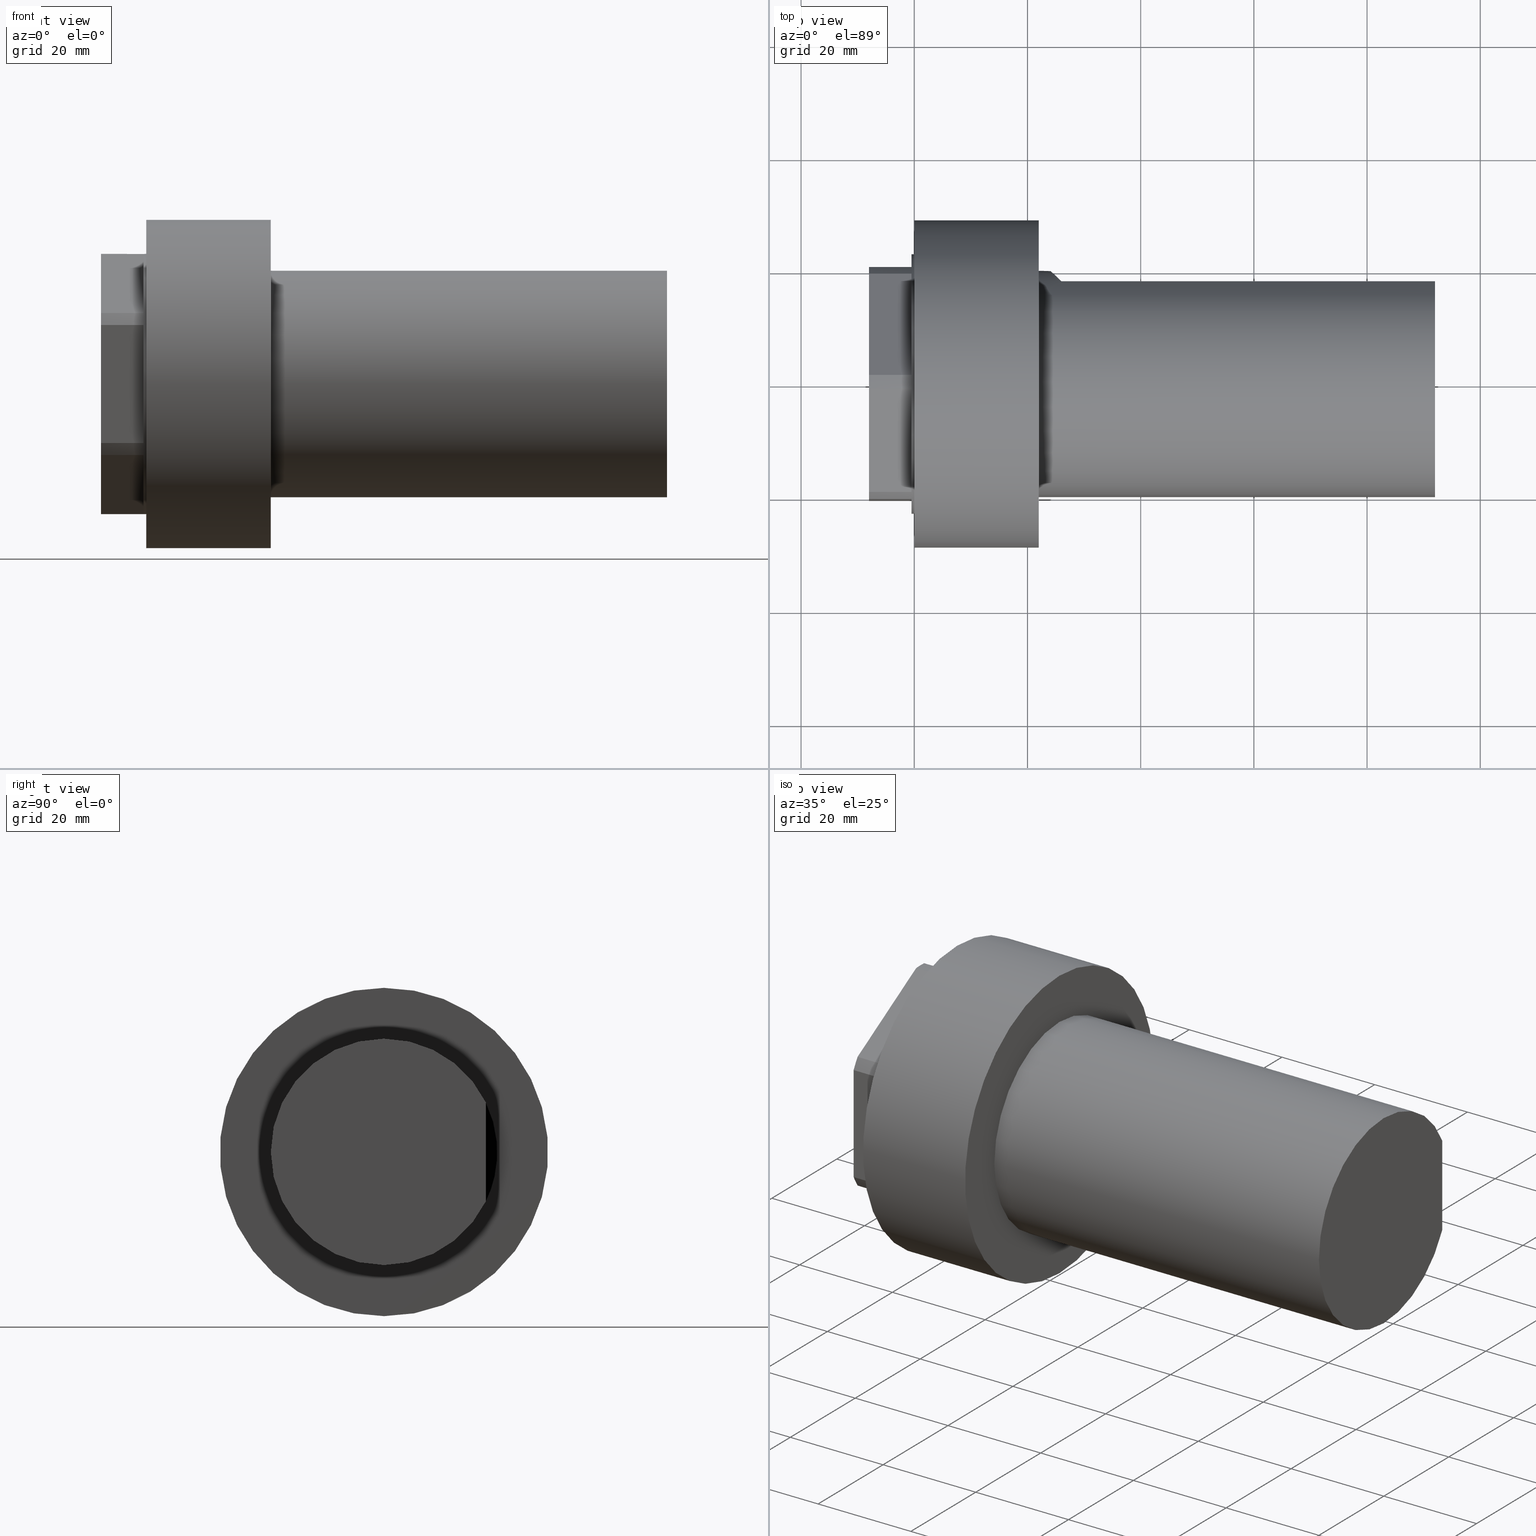
[diagram: canonical four-view strip — front | top / right | iso, engineering-drawing reading convention]
A machine part, canonical four-view strip (front | top / right | iso — engineering-drawing reading convention). The complete STEP part file that produces these views, byte-faithful:
ISO-10303-21;
HEADER;
FILE_DESCRIPTION( ( 'Unknown' ), '1' );
FILE_NAME( 'Z:/SE_WORK/Step-Stl/330032040.stp', 'Unknown', ( 'kau' ), ( 'WTO' ), 'PSStep 10.0', 'SE V20', '  ' );
FILE_SCHEMA( ( 'AUTOMOTIVE_DESIGN { 1 0 10303 214 1 1 1 1 }' ) );
ENDSEC;
DATA;
#1 = MECHANICAL_DESIGN_GEOMETRIC_PRESENTATION_REPRESENTATION( ' ', ( #10, #11, #12, #13, #14, #15, #16, #17, #18, #19, #20, #21, #22, #23, #24, #25, #26, #27, #28, #29, #30, #31, #32, #33, #34, #35, #36 ), #6 );
#2 = PRODUCT_DEFINITION_CONTEXT( '', #37, 'design' );
#3 = APPLICATION_PROTOCOL_DEFINITION( 'INTERNATIONAL STANDARD', 'automotive_design', 2001, #37 );
#4 = PRODUCT_CATEGORY_RELATIONSHIP( 'NONE', 'NONE', #38, #39 );
#5 = SHAPE_DEFINITION_REPRESENTATION( #40, #41 );
#6 =  ( GEOMETRIC_REPRESENTATION_CONTEXT( 3 )GLOBAL_UNCERTAINTY_ASSIGNED_CONTEXT( ( #44 ) )GLOBAL_UNIT_ASSIGNED_CONTEXT( ( #46, #47, #48 ) )REPRESENTATION_CONTEXT( 'NONE', 'WORKSPACE' ) );
#10 = STYLED_ITEM( '', ( #50 ), #51 );
#11 = STYLED_ITEM( '', ( #52 ), #53 );
#12 = STYLED_ITEM( '', ( #54 ), #55 );
#13 = STYLED_ITEM( '', ( #56 ), #57 );
#14 = STYLED_ITEM( '', ( #58 ), #59 );
#15 = STYLED_ITEM( '', ( #60 ), #61 );
#16 = STYLED_ITEM( '', ( #62 ), #63 );
#17 = STYLED_ITEM( '', ( #64 ), #65 );
#18 = STYLED_ITEM( '', ( #66 ), #67 );
#19 = STYLED_ITEM( '', ( #68 ), #69 );
#20 = STYLED_ITEM( '', ( #70 ), #71 );
#21 = STYLED_ITEM( '', ( #72 ), #73 );
#22 = STYLED_ITEM( '', ( #74 ), #75 );
#23 = STYLED_ITEM( '', ( #76 ), #77 );
#24 = STYLED_ITEM( '', ( #78 ), #79 );
#25 = STYLED_ITEM( '', ( #80 ), #81 );
#26 = STYLED_ITEM( '', ( #82 ), #83 );
#27 = STYLED_ITEM( '', ( #84 ), #85 );
#28 = STYLED_ITEM( '', ( #86 ), #87 );
#29 = STYLED_ITEM( '', ( #88 ), #89 );
#30 = STYLED_ITEM( '', ( #90 ), #91 );
#31 = STYLED_ITEM( '', ( #92 ), #93 );
#32 = STYLED_ITEM( '', ( #94 ), #95 );
#33 = STYLED_ITEM( '', ( #96 ), #97 );
#34 = STYLED_ITEM( '', ( #98 ), #99 );
#35 = STYLED_ITEM( '', ( #100 ), #101 );
#36 = STYLED_ITEM( '', ( #102 ), #103 );
#37 = APPLICATION_CONTEXT( 'core data for automotive mechanical design processes' );
#38 = PRODUCT_CATEGORY( 'part', 'NONE' );
#39 = PRODUCT_RELATED_PRODUCT_CATEGORY( 'detail', ' ', ( #104 ) );
#40 = PRODUCT_DEFINITION_SHAPE( 'NONE', 'NONE', #105 );
#41 = ADVANCED_BREP_SHAPE_REPRESENTATION( '1', ( #106, #107 ), #6 );
#44 = UNCERTAINTY_MEASURE_WITH_UNIT( LENGTH_MEASURE( 0.00100000000000000 ), #46, '', '' );
#46 =  ( CONVERSION_BASED_UNIT( 'MILLIMETRE', #110 )LENGTH_UNIT(  )NAMED_UNIT( #113 ) );
#47 =  ( NAMED_UNIT( #115 )PLANE_ANGLE_UNIT(  )SI_UNIT( $, .RADIAN. ) );
#48 =  ( NAMED_UNIT( #115 )SI_UNIT( $, .STERADIAN. )SOLID_ANGLE_UNIT(  ) );
#50 = PRESENTATION_STYLE_ASSIGNMENT( ( #121 ) );
#51 = ADVANCED_FACE( '', ( #122 ), #123, .T. );
#52 = PRESENTATION_STYLE_ASSIGNMENT( ( #124 ) );
#53 = ADVANCED_FACE( '', ( #125 ), #126, .F. );
#54 = PRESENTATION_STYLE_ASSIGNMENT( ( #127 ) );
#55 = ADVANCED_FACE( '', ( #128 ), #129, .T. );
#56 = PRESENTATION_STYLE_ASSIGNMENT( ( #130 ) );
#57 = ADVANCED_FACE( '', ( #131, #132 ), #133, .F. );
#58 = PRESENTATION_STYLE_ASSIGNMENT( ( #134 ) );
#59 = ADVANCED_FACE( '', ( #135, #136 ), #137, .F. );
#60 = PRESENTATION_STYLE_ASSIGNMENT( ( #138 ) );
#61 = ADVANCED_FACE( '', ( #139 ), #140, .F. );
#62 = PRESENTATION_STYLE_ASSIGNMENT( ( #141 ) );
#63 = ADVANCED_FACE( '', ( #142, #143 ), #144, .F. );
#64 = PRESENTATION_STYLE_ASSIGNMENT( ( #145 ) );
#65 = ADVANCED_FACE( '', ( #146, #147 ), #148, .F. );
#66 = PRESENTATION_STYLE_ASSIGNMENT( ( #149 ) );
#67 = ADVANCED_FACE( '', ( #150 ), #151, .F. );
#68 = PRESENTATION_STYLE_ASSIGNMENT( ( #152 ) );
#69 = ADVANCED_FACE( '', ( #153 ), #154, .T. );
#70 = PRESENTATION_STYLE_ASSIGNMENT( ( #155 ) );
#71 = ADVANCED_FACE( '', ( #156, #157 ), #158, .F. );
#72 = PRESENTATION_STYLE_ASSIGNMENT( ( #159 ) );
#73 = ADVANCED_FACE( '', ( #160 ), #161, .F. );
#74 = PRESENTATION_STYLE_ASSIGNMENT( ( #162 ) );
#75 = ADVANCED_FACE( '', ( #163 ), #164, .F. );
#76 = PRESENTATION_STYLE_ASSIGNMENT( ( #165 ) );
#77 = ADVANCED_FACE( '', ( #166 ), #167, .T. );
#78 = PRESENTATION_STYLE_ASSIGNMENT( ( #168 ) );
#79 = ADVANCED_FACE( '', ( #169, #170 ), #171, .T. );
#80 = PRESENTATION_STYLE_ASSIGNMENT( ( #172 ) );
#81 = ADVANCED_FACE( '', ( #173, #174 ), #175, .F. );
#82 = PRESENTATION_STYLE_ASSIGNMENT( ( #176 ) );
#83 = ADVANCED_FACE( '', ( #177 ), #178, .T. );
#84 = PRESENTATION_STYLE_ASSIGNMENT( ( #179 ) );
#85 = ADVANCED_FACE( '', ( #180, #181 ), #182, .F. );
#86 = PRESENTATION_STYLE_ASSIGNMENT( ( #183 ) );
#87 = ADVANCED_FACE( '', ( #184 ), #185, .F. );
#88 = PRESENTATION_STYLE_ASSIGNMENT( ( #186 ) );
#89 = ADVANCED_FACE( '', ( #187, #188 ), #189, .T. );
#90 = PRESENTATION_STYLE_ASSIGNMENT( ( #190 ) );
#91 = ADVANCED_FACE( '', ( #191 ), #192, .F. );
#92 = PRESENTATION_STYLE_ASSIGNMENT( ( #193 ) );
#93 = ADVANCED_FACE( '', ( #194 ), #195, .F. );
#94 = PRESENTATION_STYLE_ASSIGNMENT( ( #196 ) );
#95 = ADVANCED_FACE( '', ( #197 ), #198, .F. );
#96 = PRESENTATION_STYLE_ASSIGNMENT( ( #199 ) );
#97 = ADVANCED_FACE( '', ( #200, #201 ), #202, .T. );
#98 = PRESENTATION_STYLE_ASSIGNMENT( ( #203 ) );
#99 = ADVANCED_FACE( '', ( #204, #205 ), #206, .F. );
#100 = PRESENTATION_STYLE_ASSIGNMENT( ( #207 ) );
#101 = ADVANCED_FACE( '', ( #208 ), #209, .T. );
#102 = PRESENTATION_STYLE_ASSIGNMENT( ( #210 ) );
#103 = ADVANCED_FACE( '', ( #211 ), #212, .F. );
#104 = PRODUCT( '1', '1', 'PART-1-DESC', ( #213 ) );
#105 = PRODUCT_DEFINITION( 'NONE', 'NONE', #214, #2 );
#106 = MANIFOLD_SOLID_BREP( '1', #215 );
#107 = AXIS2_PLACEMENT_3D( '', #216, #217, #218 );
#110 = LENGTH_MEASURE_WITH_UNIT( LENGTH_MEASURE( 1.00000000000000 ), #219 );
#113 = DIMENSIONAL_EXPONENTS( 1.00000000000000, 0.000000000000000, 0.000000000000000, 0.000000000000000, 0.000000000000000, 0.000000000000000, 0.000000000000000 );
#115 = DIMENSIONAL_EXPONENTS( 0.000000000000000, 0.000000000000000, 0.000000000000000, 0.000000000000000, 0.000000000000000, 0.000000000000000, 0.000000000000000 );
#121 = SURFACE_STYLE_USAGE( .BOTH., #220 );
#122 = FACE_OUTER_BOUND( '', #221, .T. );
#123 = PLANE( '', #222 );
#124 = SURFACE_STYLE_USAGE( .BOTH., #223 );
#125 = FACE_OUTER_BOUND( '', #224, .T. );
#126 = PLANE( '', #225 );
#127 = SURFACE_STYLE_USAGE( .BOTH., #226 );
#128 = FACE_OUTER_BOUND( '', #227, .T. );
#129 = PLANE( '', #228 );
#130 = SURFACE_STYLE_USAGE( .BOTH., #229 );
#131 = FACE_OUTER_BOUND( '', #230, .T. );
#132 = FACE_BOUND( '', #231, .T. );
#133 = PLANE( '', #232 );
#134 = SURFACE_STYLE_USAGE( .BOTH., #233 );
#135 = FACE_OUTER_BOUND( '', #234, .T. );
#136 = FACE_BOUND( '', #235, .T. );
#137 = PLANE( '', #236 );
#138 = SURFACE_STYLE_USAGE( .BOTH., #237 );
#139 = FACE_OUTER_BOUND( '', #238, .T. );
#140 = PLANE( '', #239 );
#141 = SURFACE_STYLE_USAGE( .BOTH., #240 );
#142 = FACE_OUTER_BOUND( '', #241, .T. );
#143 = FACE_OUTER_BOUND( '', #242, .T. );
#144 = CYLINDRICAL_SURFACE( '', #243, 20.0070508075688 );
#145 = SURFACE_STYLE_USAGE( .BOTH., #244 );
#146 = FACE_BOUND( '', #245, .T. );
#147 = FACE_OUTER_BOUND( '', #246, .T. );
#148 = PLANE( '', #247 );
#149 = SURFACE_STYLE_USAGE( .BOTH., #248 );
#150 = FACE_OUTER_BOUND( '', #249, .T. );
#151 = PLANE( '', #250 );
#152 = SURFACE_STYLE_USAGE( .BOTH., #251 );
#153 = FACE_OUTER_BOUND( '', #252, .T. );
#154 = PLANE( '', #253 );
#155 = SURFACE_STYLE_USAGE( .BOTH., #254 );
#156 = FACE_BOUND( '', #255, .T. );
#157 = FACE_OUTER_BOUND( '', #256, .T. );
#158 = PLANE( '', #257 );
#159 = SURFACE_STYLE_USAGE( .BOTH., #258 );
#160 = FACE_OUTER_BOUND( '', #259, .T. );
#161 = PLANE( '', #260 );
#162 = SURFACE_STYLE_USAGE( .BOTH., #261 );
#163 = FACE_OUTER_BOUND( '', #262, .T. );
#164 = PLANE( '', #263 );
#165 = SURFACE_STYLE_USAGE( .BOTH., #264 );
#166 = FACE_OUTER_BOUND( '', #265, .T. );
#167 = PLANE( '', #266 );
#168 = SURFACE_STYLE_USAGE( .BOTH., #267 );
#169 = FACE_OUTER_BOUND( '', #268, .T. );
#170 = FACE_OUTER_BOUND( '', #269, .T. );
#171 = CYLINDRICAL_SURFACE( '', #270, 20.0000000000000 );
#172 = SURFACE_STYLE_USAGE( .BOTH., #271 );
#173 = FACE_OUTER_BOUND( '', #272, .T. );
#174 = FACE_BOUND( '', #273, .T. );
#175 = CONICAL_SURFACE( '', #274, 15.7954808572561, 1.04719755119660 );
#176 = SURFACE_STYLE_USAGE( .BOTH., #275 );
#177 = FACE_OUTER_BOUND( '', #276, .T. );
#178 = PLANE( '', #277 );
#179 = SURFACE_STYLE_USAGE( .BOTH., #278 );
#180 = FACE_OUTER_BOUND( '', #279, .T. );
#181 = FACE_OUTER_BOUND( '', #280, .T. );
#182 = CYLINDRICAL_SURFACE( '', #281, 12.0000000000000 );
#183 = SURFACE_STYLE_USAGE( .BOTH., #282 );
#184 = FACE_OUTER_BOUND( '', #283, .T. );
#185 = PLANE( '', #284 );
#186 = SURFACE_STYLE_USAGE( .BOTH., #285 );
#187 = FACE_OUTER_BOUND( '', #286, .T. );
#188 = FACE_OUTER_BOUND( '', #287, .T. );
#189 = CYLINDRICAL_SURFACE( '', #288, 29.0000000000000 );
#190 = SURFACE_STYLE_USAGE( .BOTH., #289 );
#191 = FACE_OUTER_BOUND( '', #290, .T. );
#192 = PLANE( '', #291 );
#193 = SURFACE_STYLE_USAGE( .BOTH., #292 );
#194 = FACE_OUTER_BOUND( '', #293, .T. );
#195 = PLANE( '', #294 );
#196 = SURFACE_STYLE_USAGE( .BOTH., #295 );
#197 = FACE_OUTER_BOUND( '', #296, .T. );
#198 = PLANE( '', #297 );
#199 = SURFACE_STYLE_USAGE( .BOTH., #298 );
#200 = FACE_OUTER_BOUND( '', #299, .T. );
#201 = FACE_OUTER_BOUND( '', #300, .T. );
#202 = CYLINDRICAL_SURFACE( '', #301, 23.0000000000000 );
#203 = SURFACE_STYLE_USAGE( .BOTH., #302 );
#204 = FACE_OUTER_BOUND( '', #303, .T. );
#205 = FACE_BOUND( '', #304, .T. );
#206 = CONICAL_SURFACE( '', #305, 12.3000000000000, 0.139626340159546 );
#207 = SURFACE_STYLE_USAGE( .BOTH., #306 );
#208 = FACE_OUTER_BOUND( '', #307, .T. );
#209 = PLANE( '', #308 );
#210 = SURFACE_STYLE_USAGE( .BOTH., #309 );
#211 = FACE_OUTER_BOUND( '', #310, .T. );
#212 = PLANE( '', #311 );
#213 = PRODUCT_CONTEXT( '', #37, 'mechanical' );
#214 = PRODUCT_DEFINITION_FORMATION_WITH_SPECIFIED_SOURCE( ' ', 'NONE', #104, .NOT_KNOWN. );
#215 = CLOSED_SHELL( '', ( #89, #51, #73, #97, #83, #53, #55, #91, #57, #75, #69, #93, #101, #77, #71, #79, #59, #67, #85, #65, #63, #81, #99, #103, #61, #95, #87 ) );
#216 = CARTESIAN_POINT( '', ( 0.000000000000000, 0.000000000000000, 0.000000000000000 ) );
#217 = DIRECTION( '', ( 0.000000000000000, 0.000000000000000, 1.00000000000000 ) );
#218 = DIRECTION( '', ( 1.00000000000000, 0.000000000000000, 0.000000000000000 ) );
#219 =  ( LENGTH_UNIT(  )NAMED_UNIT( #113 )SI_UNIT( .MILLI., .METRE. ) );
#220 = SURFACE_SIDE_STYLE( '', ( #313 ) );
#221 = EDGE_LOOP( '', ( #314, #315 ) );
#222 = AXIS2_PLACEMENT_3D( '', #316, #317, #318 );
#223 = SURFACE_SIDE_STYLE( '', ( #319 ) );
#224 = EDGE_LOOP( '', ( #320, #321, #322, #323 ) );
#225 = AXIS2_PLACEMENT_3D( '', #324, #325, #326 );
#226 = SURFACE_SIDE_STYLE( '', ( #327 ) );
#227 = EDGE_LOOP( '', ( #328, #329 ) );
#228 = AXIS2_PLACEMENT_3D( '', #330, #331, #332 );
#229 = SURFACE_SIDE_STYLE( '', ( #333 ) );
#230 = EDGE_LOOP( '', ( #334, #335, #336, #337, #338, #339, #340, #341, #342, #343, #344, #345 ) );
#231 = EDGE_LOOP( '', ( #346 ) );
#232 = AXIS2_PLACEMENT_3D( '', #347, #348, #349 );
#233 = SURFACE_SIDE_STYLE( '', ( #350 ) );
#234 = EDGE_LOOP( '', ( #351 ) );
#235 = EDGE_LOOP( '', ( #352 ) );
#236 = AXIS2_PLACEMENT_3D( '', #353, #354, #355 );
#237 = SURFACE_SIDE_STYLE( '', ( #356 ) );
#238 = EDGE_LOOP( '', ( #357, #358 ) );
#239 = AXIS2_PLACEMENT_3D( '', #359, #360, #361 );
#240 = SURFACE_SIDE_STYLE( '', ( #362 ) );
#241 = EDGE_LOOP( '', ( #363 ) );
#242 = EDGE_LOOP( '', ( #364 ) );
#243 = AXIS2_PLACEMENT_3D( '', #365, #366, #367 );
#244 = SURFACE_SIDE_STYLE( '', ( #368 ) );
#245 = EDGE_LOOP( '', ( #369 ) );
#246 = EDGE_LOOP( '', ( #370 ) );
#247 = AXIS2_PLACEMENT_3D( '', #371, #372, #373 );
#248 = SURFACE_SIDE_STYLE( '', ( #374 ) );
#249 = EDGE_LOOP( '', ( #375, #376 ) );
#250 = AXIS2_PLACEMENT_3D( '', #377, #378, #379 );
#251 = SURFACE_SIDE_STYLE( '', ( #380 ) );
#252 = EDGE_LOOP( '', ( #381, #382 ) );
#253 = AXIS2_PLACEMENT_3D( '', #383, #384, #385 );
#254 = SURFACE_SIDE_STYLE( '', ( #386 ) );
#255 = EDGE_LOOP( '', ( #387 ) );
#256 = EDGE_LOOP( '', ( #388 ) );
#257 = AXIS2_PLACEMENT_3D( '', #389, #390, #391 );
#258 = SURFACE_SIDE_STYLE( '', ( #392 ) );
#259 = EDGE_LOOP( '', ( #393, #394, #395, #396 ) );
#260 = AXIS2_PLACEMENT_3D( '', #397, #398, #399 );
#261 = SURFACE_SIDE_STYLE( '', ( #400 ) );
#262 = EDGE_LOOP( '', ( #401, #402, #403, #404 ) );
#263 = AXIS2_PLACEMENT_3D( '', #405, #406, #407 );
#264 = SURFACE_SIDE_STYLE( '', ( #408 ) );
#265 = EDGE_LOOP( '', ( #409, #410 ) );
#266 = AXIS2_PLACEMENT_3D( '', #411, #412, #413 );
#267 = SURFACE_SIDE_STYLE( '', ( #414 ) );
#268 = EDGE_LOOP( '', ( #415, #416, #417, #418 ) );
#269 = EDGE_LOOP( '', ( #419 ) );
#270 = AXIS2_PLACEMENT_3D( '', #420, #421, #422 );
#271 = SURFACE_SIDE_STYLE( '', ( #423 ) );
#272 = EDGE_LOOP( '', ( #424 ) );
#273 = EDGE_LOOP( '', ( #425 ) );
#274 = AXIS2_PLACEMENT_3D( '', #426, #427, #428 );
#275 = SURFACE_SIDE_STYLE( '', ( #429 ) );
#276 = EDGE_LOOP( '', ( #430, #431 ) );
#277 = AXIS2_PLACEMENT_3D( '', #432, #433, #434 );
#278 = SURFACE_SIDE_STYLE( '', ( #435 ) );
#279 = EDGE_LOOP( '', ( #436 ) );
#280 = EDGE_LOOP( '', ( #437 ) );
#281 = AXIS2_PLACEMENT_3D( '', #438, #439, #440 );
#282 = SURFACE_SIDE_STYLE( '', ( #441 ) );
#283 = EDGE_LOOP( '', ( #442, #443, #444, #445 ) );
#284 = AXIS2_PLACEMENT_3D( '', #446, #447, #448 );
#285 = SURFACE_SIDE_STYLE( '', ( #449 ) );
#286 = EDGE_LOOP( '', ( #450 ) );
#287 = EDGE_LOOP( '', ( #451 ) );
#288 = AXIS2_PLACEMENT_3D( '', #452, #453, #454 );
#289 = SURFACE_SIDE_STYLE( '', ( #455 ) );
#290 = EDGE_LOOP( '', ( #456, #457, #458, #459 ) );
#291 = AXIS2_PLACEMENT_3D( '', #460, #461, #462 );
#292 = SURFACE_SIDE_STYLE( '', ( #463 ) );
#293 = EDGE_LOOP( '', ( #464, #465, #466, #467 ) );
#294 = AXIS2_PLACEMENT_3D( '', #468, #469, #470 );
#295 = SURFACE_SIDE_STYLE( '', ( #471 ) );
#296 = EDGE_LOOP( '', ( #472, #473, #474, #475 ) );
#297 = AXIS2_PLACEMENT_3D( '', #476, #477, #478 );
#298 = SURFACE_SIDE_STYLE( '', ( #479 ) );
#299 = EDGE_LOOP( '', ( #480, #481, #482, #483, #484, #485, #486, #487, #488, #489, #490, #491, #492, #493, #494, #495, #496, #497, #498, #499, #500, #501, #502, #503 ) );
#300 = EDGE_LOOP( '', ( #504 ) );
#301 = AXIS2_PLACEMENT_3D( '', #505, #506, #507 );
#302 = SURFACE_SIDE_STYLE( '', ( #508 ) );
#303 = EDGE_LOOP( '', ( #509 ) );
#304 = EDGE_LOOP( '', ( #510 ) );
#305 = AXIS2_PLACEMENT_3D( '', #511, #512, #513 );
#306 = SURFACE_SIDE_STYLE( '', ( #514 ) );
#307 = EDGE_LOOP( '', ( #515, #516 ) );
#308 = AXIS2_PLACEMENT_3D( '', #517, #518, #519 );
#309 = SURFACE_SIDE_STYLE( '', ( #520 ) );
#310 = EDGE_LOOP( '', ( #521 ) );
#311 = AXIS2_PLACEMENT_3D( '', #522, #523, #524 );
#313 = SURFACE_STYLE_FILL_AREA( #525 );
#314 = ORIENTED_EDGE( '', *, *, #526, .T. );
#315 = ORIENTED_EDGE( '', *, *, #527, .T. );
#316 = CARTESIAN_POINT( '', ( -0.500000000000007, 5.12500000000000, -8.87676038879050 ) );
#317 = DIRECTION( '', ( -1.00000000000000, 0.000000000000000, 0.000000000000000 ) );
#318 = DIRECTION( '', ( 0.000000000000000, 0.000000000000000, 1.00000000000000 ) );
#319 = SURFACE_STYLE_FILL_AREA( #528 );
#320 = ORIENTED_EDGE( '', *, *, #529, .T. );
#321 = ORIENTED_EDGE( '', *, *, #530, .F. );
#322 = ORIENTED_EDGE( '', *, *, #531, .F. );
#323 = ORIENTED_EDGE( '', *, *, #532, .T. );
#324 = CARTESIAN_POINT( '', ( -0.500000000000007, -20.5000000000000, 10.4283268073071 ) );
#325 = DIRECTION( '', ( 0.000000000000000, 1.00000000000000, 0.000000000000000 ) );
#326 = DIRECTION( '', ( 0.000000000000000, 0.000000000000000, 1.00000000000000 ) );
#327 = SURFACE_STYLE_FILL_AREA( #533 );
#328 = ORIENTED_EDGE( '', *, *, #534, .T. );
#329 = ORIENTED_EDGE( '', *, *, #535, .T. );
#330 = CARTESIAN_POINT( '', ( -0.500000000000007, 5.12500000000000, -8.87676038879050 ) );
#331 = DIRECTION( '', ( -1.00000000000000, 0.000000000000000, 0.000000000000000 ) );
#332 = DIRECTION( '', ( 0.000000000000000, 0.000000000000000, 1.00000000000000 ) );
#333 = SURFACE_STYLE_FILL_AREA( #536 );
#334 = ORIENTED_EDGE( '', *, *, #537, .F. );
#335 = ORIENTED_EDGE( '', *, *, #538, .F. );
#336 = ORIENTED_EDGE( '', *, *, #539, .F. );
#337 = ORIENTED_EDGE( '', *, *, #529, .F. );
#338 = ORIENTED_EDGE( '', *, *, #540, .F. );
#339 = ORIENTED_EDGE( '', *, *, #541, .F. );
#340 = ORIENTED_EDGE( '', *, *, #542, .F. );
#341 = ORIENTED_EDGE( '', *, *, #543, .F. );
#342 = ORIENTED_EDGE( '', *, *, #544, .F. );
#343 = ORIENTED_EDGE( '', *, *, #545, .F. );
#344 = ORIENTED_EDGE( '', *, *, #546, .F. );
#345 = ORIENTED_EDGE( '', *, *, #547, .F. );
#346 = ORIENTED_EDGE( '', *, *, #548, .T. );
#347 = CARTESIAN_POINT( '', ( -8.00000000000000, 0.000000000000000, -12.0000000000000 ) );
#348 = DIRECTION( '', ( 1.00000000000000, 0.000000000000000, 0.000000000000000 ) );
#349 = DIRECTION( '', ( 0.000000000000000, 0.000000000000000, -1.00000000000000 ) );
#350 = SURFACE_STYLE_FILL_AREA( #549 );
#351 = ORIENTED_EDGE( '', *, *, #550, .F. );
#352 = ORIENTED_EDGE( '', *, *, #551, .T. );
#353 = CARTESIAN_POINT( '', ( 6.93889390390723E-015, 0.000000000000000, -29.0000000000000 ) );
#354 = DIRECTION( '', ( 1.00000000000000, 0.000000000000000, 0.000000000000000 ) );
#355 = DIRECTION( '', ( 0.000000000000000, 0.000000000000000, -1.00000000000000 ) );
#356 = SURFACE_STYLE_FILL_AREA( #552 );
#357 = ORIENTED_EDGE( '', *, *, #553, .T. );
#358 = ORIENTED_EDGE( '', *, *, #554, .F. );
#359 = CARTESIAN_POINT( '', ( 92.0000000000000, 0.000000000000000, -20.0000000000000 ) );
#360 = DIRECTION( '', ( -1.00000000000000, 0.000000000000000, 0.000000000000000 ) );
#361 = DIRECTION( '', ( 0.000000000000000, 0.000000000000000, 1.00000000000000 ) );
#362 = SURFACE_STYLE_FILL_AREA( #555 );
#363 = ORIENTED_EDGE( '', *, *, #556, .F. );
#364 = ORIENTED_EDGE( '', *, *, #557, .T. );
#365 = CARTESIAN_POINT( '', ( 38.3031897014172, 0.000000000000000, 0.000000000000000 ) );
#366 = DIRECTION( '', ( -1.00000000000000, -0.000000000000000, -0.000000000000000 ) );
#367 = DIRECTION( '', ( 0.000000000000000, 0.000000000000000, -1.00000000000000 ) );
#368 = SURFACE_STYLE_FILL_AREA( #558 );
#369 = ORIENTED_EDGE( '', *, *, #559, .F. );
#370 = ORIENTED_EDGE( '', *, *, #556, .T. );
#371 = CARTESIAN_POINT( '', ( 7.53394364031421, 0.000000000000000, -20.0070508075688 ) );
#372 = DIRECTION( '', ( -1.00000000000000, 0.000000000000000, 0.000000000000000 ) );
#373 = DIRECTION( '', ( 0.000000000000000, 0.000000000000000, 1.00000000000000 ) );
#374 = SURFACE_STYLE_FILL_AREA( #560 );
#375 = ORIENTED_EDGE( '', *, *, #561, .T. );
#376 = ORIENTED_EDGE( '', *, *, #562, .F. );
#377 = CARTESIAN_POINT( '', ( 26.0000000000000, 18.0000000000000, 35.1985565600989 ) );
#378 = DIRECTION( '', ( -0.707106781186549, -0.707106781186546, 0.000000000000000 ) );
#379 = DIRECTION( '', ( 0.707106781186546, -0.707106781186549, 0.000000000000000 ) );
#380 = SURFACE_STYLE_FILL_AREA( #563 );
#381 = ORIENTED_EDGE( '', *, *, #564, .T. );
#382 = ORIENTED_EDGE( '', *, *, #565, .T. );
#383 = CARTESIAN_POINT( '', ( -0.500000000000007, 5.12500000000000, -8.87676038879050 ) );
#384 = DIRECTION( '', ( -1.00000000000000, 0.000000000000000, 0.000000000000000 ) );
#385 = DIRECTION( '', ( 0.000000000000000, 0.000000000000000, 1.00000000000000 ) );
#386 = SURFACE_STYLE_FILL_AREA( #566 );
#387 = ORIENTED_EDGE( '', *, *, #567, .F. );
#388 = ORIENTED_EDGE( '', *, *, #568, .T. );
#389 = CARTESIAN_POINT( '', ( 22.0000000000000, 0.000000000000000, -29.0000000000000 ) );
#390 = DIRECTION( '', ( -1.00000000000000, 0.000000000000000, 0.000000000000000 ) );
#391 = DIRECTION( '', ( 0.000000000000000, 0.000000000000000, 1.00000000000000 ) );
#392 = SURFACE_STYLE_FILL_AREA( #569 );
#393 = ORIENTED_EDGE( '', *, *, #538, .T. );
#394 = ORIENTED_EDGE( '', *, *, #570, .F. );
#395 = ORIENTED_EDGE( '', *, *, #527, .F. );
#396 = ORIENTED_EDGE( '', *, *, #571, .T. );
#397 = CARTESIAN_POINT( '', ( -0.500000000000007, -19.2811959340942, -12.5393573739275 ) );
#398 = DIRECTION( '', ( 0.000000000000000, 0.500000000000000, 0.866025403784439 ) );
#399 = DIRECTION( '', ( 0.000000000000000, -0.866025403784439, 0.500000000000000 ) );
#400 = SURFACE_STYLE_FILL_AREA( #572 );
#401 = ORIENTED_EDGE( '', *, *, #545, .T. );
#402 = ORIENTED_EDGE( '', *, *, #573, .F. );
#403 = ORIENTED_EDGE( '', *, *, #574, .F. );
#404 = ORIENTED_EDGE( '', *, *, #575, .T. );
#405 = CARTESIAN_POINT( '', ( -0.500000000000007, 20.5000000000000, -10.4283268073071 ) );
#406 = DIRECTION( '', ( 0.000000000000000, -1.00000000000000, 0.000000000000000 ) );
#407 = DIRECTION( '', ( 0.000000000000000, 0.000000000000000, -1.00000000000000 ) );
#408 = SURFACE_STYLE_FILL_AREA( #576 );
#409 = ORIENTED_EDGE( '', *, *, #577, .T. );
#410 = ORIENTED_EDGE( '', *, *, #578, .T. );
#411 = CARTESIAN_POINT( '', ( -0.500000000000007, 5.12500000000000, -8.87676038879050 ) );
#412 = DIRECTION( '', ( -1.00000000000000, 0.000000000000000, 0.000000000000000 ) );
#413 = DIRECTION( '', ( 0.000000000000000, 0.000000000000000, 1.00000000000000 ) );
#414 = SURFACE_STYLE_FILL_AREA( #579 );
#415 = ORIENTED_EDGE( '', *, *, #553, .F. );
#416 = ORIENTED_EDGE( '', *, *, #580, .T. );
#417 = ORIENTED_EDGE( '', *, *, #562, .T. );
#418 = ORIENTED_EDGE( '', *, *, #581, .T. );
#419 = ORIENTED_EDGE( '', *, *, #567, .T. );
#420 = CARTESIAN_POINT( '', ( 38.3031897014172, 0.000000000000000, 0.000000000000000 ) );
#421 = DIRECTION( '', ( -1.00000000000000, -0.000000000000000, -0.000000000000000 ) );
#422 = DIRECTION( '', ( 0.000000000000000, 0.000000000000000, -1.00000000000000 ) );
#423 = SURFACE_STYLE_FILL_AREA( #582 );
#424 = ORIENTED_EDGE( '', *, *, #557, .F. );
#425 = ORIENTED_EDGE( '', *, *, #583, .T. );
#426 = CARTESIAN_POINT( '', ( 13.4315510445241, 0.000000000000000, 0.000000000000000 ) );
#427 = DIRECTION( '', ( -1.00000000000000, 0.000000000000000, -0.000000000000000 ) );
#428 = DIRECTION( '', ( 0.000000000000000, 0.000000000000000, 1.00000000000000 ) );
#429 = SURFACE_STYLE_FILL_AREA( #584 );
#430 = ORIENTED_EDGE( '', *, *, #585, .T. );
#431 = ORIENTED_EDGE( '', *, *, #531, .T. );
#432 = CARTESIAN_POINT( '', ( -0.500000000000007, 5.12500000000000, -8.87676038879050 ) );
#433 = DIRECTION( '', ( -1.00000000000000, 0.000000000000000, 0.000000000000000 ) );
#434 = DIRECTION( '', ( 0.000000000000000, 0.000000000000000, 1.00000000000000 ) );
#435 = SURFACE_STYLE_FILL_AREA( #586 );
#436 = ORIENTED_EDGE( '', *, *, #548, .F. );
#437 = ORIENTED_EDGE( '', *, *, #559, .T. );
#438 = CARTESIAN_POINT( '', ( 38.3031897014172, 0.000000000000000, 0.000000000000000 ) );
#439 = DIRECTION( '', ( -1.00000000000000, -0.000000000000000, -0.000000000000000 ) );
#440 = DIRECTION( '', ( 0.000000000000000, 0.000000000000000, -1.00000000000000 ) );
#441 = SURFACE_STYLE_FILL_AREA( #587 );
#442 = ORIENTED_EDGE( '', *, *, #543, .T. );
#443 = ORIENTED_EDGE( '', *, *, #588, .F. );
#444 = ORIENTED_EDGE( '', *, *, #578, .F. );
#445 = ORIENTED_EDGE( '', *, *, #589, .T. );
#446 = CARTESIAN_POINT( '', ( -0.500000000000007, 19.2811959340942, 12.5393573739275 ) );
#447 = DIRECTION( '', ( 0.000000000000000, -0.500000000000000, -0.866025403784439 ) );
#448 = DIRECTION( '', ( 0.000000000000000, 0.866025403784439, -0.500000000000000 ) );
#449 = SURFACE_STYLE_FILL_AREA( #590 );
#450 = ORIENTED_EDGE( '', *, *, #568, .F. );
#451 = ORIENTED_EDGE( '', *, *, #550, .T. );
#452 = CARTESIAN_POINT( '', ( 38.3031897014172, 0.000000000000000, 0.000000000000000 ) );
#453 = DIRECTION( '', ( -1.00000000000000, -0.000000000000000, -0.000000000000000 ) );
#454 = DIRECTION( '', ( 0.000000000000000, 0.000000000000000, -1.00000000000000 ) );
#455 = SURFACE_STYLE_FILL_AREA( #591 );
#456 = ORIENTED_EDGE( '', *, *, #541, .T. );
#457 = ORIENTED_EDGE( '', *, *, #592, .F. );
#458 = ORIENTED_EDGE( '', *, *, #535, .F. );
#459 = ORIENTED_EDGE( '', *, *, #593, .T. );
#460 = CARTESIAN_POINT( '', ( -0.500000000000007, -1.21880406590580, 22.9676841812345 ) );
#461 = DIRECTION( '', ( 0.000000000000000, 0.500000000000000, -0.866025403784438 ) );
#462 = DIRECTION( '', ( 0.000000000000000, 0.866025403784438, 0.500000000000000 ) );
#463 = SURFACE_STYLE_FILL_AREA( #594 );
#464 = ORIENTED_EDGE( '', *, *, #547, .T. );
#465 = ORIENTED_EDGE( '', *, *, #595, .F. );
#466 = ORIENTED_EDGE( '', *, *, #565, .F. );
#467 = ORIENTED_EDGE( '', *, *, #596, .T. );
#468 = CARTESIAN_POINT( '', ( -0.500000000000007, 1.21880406590578, -22.9676841812345 ) );
#469 = DIRECTION( '', ( 0.000000000000000, -0.500000000000000, 0.866025403784439 ) );
#470 = DIRECTION( '', ( 0.000000000000000, -0.866025403784439, -0.500000000000000 ) );
#471 = SURFACE_STYLE_FILL_AREA( #597 );
#472 = ORIENTED_EDGE( '', *, *, #561, .F. );
#473 = ORIENTED_EDGE( '', *, *, #580, .F. );
#474 = ORIENTED_EDGE( '', *, *, #554, .T. );
#475 = ORIENTED_EDGE( '', *, *, #581, .F. );
#476 = CARTESIAN_POINT( '', ( 92.0000000000000, 18.0000000000000, 35.1985565600989 ) );
#477 = DIRECTION( '', ( 0.000000000000000, -1.00000000000000, 0.000000000000000 ) );
#478 = DIRECTION( '', ( 0.000000000000000, 0.000000000000000, -1.00000000000000 ) );
#479 = SURFACE_STYLE_FILL_AREA( #598 );
#480 = ORIENTED_EDGE( '', *, *, #589, .F. );
#481 = ORIENTED_EDGE( '', *, *, #577, .F. );
#482 = ORIENTED_EDGE( '', *, *, #588, .T. );
#483 = ORIENTED_EDGE( '', *, *, #542, .T. );
#484 = ORIENTED_EDGE( '', *, *, #593, .F. );
#485 = ORIENTED_EDGE( '', *, *, #534, .F. );
#486 = ORIENTED_EDGE( '', *, *, #592, .T. );
#487 = ORIENTED_EDGE( '', *, *, #540, .T. );
#488 = ORIENTED_EDGE( '', *, *, #532, .F. );
#489 = ORIENTED_EDGE( '', *, *, #585, .F. );
#490 = ORIENTED_EDGE( '', *, *, #530, .T. );
#491 = ORIENTED_EDGE( '', *, *, #539, .T. );
#492 = ORIENTED_EDGE( '', *, *, #571, .F. );
#493 = ORIENTED_EDGE( '', *, *, #526, .F. );
#494 = ORIENTED_EDGE( '', *, *, #570, .T. );
#495 = ORIENTED_EDGE( '', *, *, #537, .T. );
#496 = ORIENTED_EDGE( '', *, *, #596, .F. );
#497 = ORIENTED_EDGE( '', *, *, #564, .F. );
#498 = ORIENTED_EDGE( '', *, *, #595, .T. );
#499 = ORIENTED_EDGE( '', *, *, #546, .T. );
#500 = ORIENTED_EDGE( '', *, *, #575, .F. );
#501 = ORIENTED_EDGE( '', *, *, #599, .F. );
#502 = ORIENTED_EDGE( '', *, *, #573, .T. );
#503 = ORIENTED_EDGE( '', *, *, #544, .T. );
#504 = ORIENTED_EDGE( '', *, *, #551, .F. );
#505 = CARTESIAN_POINT( '', ( 38.3031897014172, 0.000000000000000, 0.000000000000000 ) );
#506 = DIRECTION( '', ( -1.00000000000000, -0.000000000000000, -0.000000000000000 ) );
#507 = DIRECTION( '', ( 0.000000000000000, 0.000000000000000, -1.00000000000000 ) );
#508 = SURFACE_STYLE_FILL_AREA( #600 );
#509 = ORIENTED_EDGE( '', *, *, #583, .F. );
#510 = ORIENTED_EDGE( '', *, *, #601, .T. );
#511 = CARTESIAN_POINT( '', ( 38.3031897014172, 0.000000000000000, 0.000000000000000 ) );
#512 = DIRECTION( '', ( -1.00000000000000, 0.000000000000000, -0.000000000000000 ) );
#513 = DIRECTION( '', ( 0.000000000000000, 0.000000000000000, 1.00000000000000 ) );
#514 = SURFACE_STYLE_FILL_AREA( #602 );
#515 = ORIENTED_EDGE( '', *, *, #599, .T. );
#516 = ORIENTED_EDGE( '', *, *, #574, .T. );
#517 = CARTESIAN_POINT( '', ( -0.500000000000007, 5.12500000000000, -8.87676038879050 ) );
#518 = DIRECTION( '', ( -1.00000000000000, 0.000000000000000, 0.000000000000000 ) );
#519 = DIRECTION( '', ( 0.000000000000000, 0.000000000000000, 1.00000000000000 ) );
#520 = SURFACE_STYLE_FILL_AREA( #603 );
#521 = ORIENTED_EDGE( '', *, *, #601, .F. );
#522 = CARTESIAN_POINT( '', ( 38.3031897014172, 0.000000000000000, 0.000000000000000 ) );
#523 = DIRECTION( '', ( 1.00000000000000, 0.000000000000000, 0.000000000000000 ) );
#524 = DIRECTION( '', ( 0.000000000000000, 0.000000000000000, -1.00000000000000 ) );
#525 = FILL_AREA_STYLE( '', ( #604 ) );
#526 = EDGE_CURVE( '', #605, #606, #607, .T. );
#527 = EDGE_CURVE( '', #606, #605, #608, .T. );
#528 = FILL_AREA_STYLE( '', ( #609 ) );
#529 = EDGE_CURVE( '', #610, #611, #612, .T. );
#530 = EDGE_CURVE( '', #613, #611, #614, .T. );
#531 = EDGE_CURVE( '', #615, #613, #616, .T. );
#532 = EDGE_CURVE( '', #615, #610, #617, .T. );
#533 = FILL_AREA_STYLE( '', ( #618 ) );
#534 = EDGE_CURVE( '', #619, #620, #621, .T. );
#535 = EDGE_CURVE( '', #620, #619, #622, .T. );
#536 = FILL_AREA_STYLE( '', ( #623 ) );
#537 = EDGE_CURVE( '', #624, #625, #626, .T. );
#538 = EDGE_CURVE( '', #627, #624, #628, .T. );
#539 = EDGE_CURVE( '', #611, #627, #629, .T. );
#540 = EDGE_CURVE( '', #630, #610, #631, .T. );
#541 = EDGE_CURVE( '', #632, #630, #633, .T. );
#542 = EDGE_CURVE( '', #634, #632, #635, .T. );
#543 = EDGE_CURVE( '', #636, #634, #637, .T. );
#544 = EDGE_CURVE( '', #638, #636, #639, .T. );
#545 = EDGE_CURVE( '', #640, #638, #641, .T. );
#546 = EDGE_CURVE( '', #642, #640, #643, .T. );
#547 = EDGE_CURVE( '', #625, #642, #644, .T. );
#548 = EDGE_CURVE( '', #645, #645, #646, .T. );
#549 = FILL_AREA_STYLE( '', ( #647 ) );
#550 = EDGE_CURVE( '', #648, #648, #649, .T. );
#551 = EDGE_CURVE( '', #650, #650, #651, .T. );
#552 = FILL_AREA_STYLE( '', ( #652 ) );
#553 = EDGE_CURVE( '', #653, #654, #655, .T. );
#554 = EDGE_CURVE( '', #653, #654, #656, .T. );
#555 = FILL_AREA_STYLE( '', ( #657 ) );
#556 = EDGE_CURVE( '', #658, #658, #659, .T. );
#557 = EDGE_CURVE( '', #660, #660, #661, .T. );
#558 = FILL_AREA_STYLE( '', ( #662 ) );
#559 = EDGE_CURVE( '', #663, #663, #664, .T. );
#560 = FILL_AREA_STYLE( '', ( #665 ) );
#561 = EDGE_CURVE( '', #666, #667, #668, .T. );
#562 = EDGE_CURVE( '', #666, #667, #669, .T. );
#563 = FILL_AREA_STYLE( '', ( #670 ) );
#564 = EDGE_CURVE( '', #671, #672, #673, .T. );
#565 = EDGE_CURVE( '', #672, #671, #674, .T. );
#566 = FILL_AREA_STYLE( '', ( #675 ) );
#567 = EDGE_CURVE( '', #676, #676, #677, .T. );
#568 = EDGE_CURVE( '', #678, #678, #679, .T. );
#569 = FILL_AREA_STYLE( '', ( #680 ) );
#570 = EDGE_CURVE( '', #605, #624, #681, .T. );
#571 = EDGE_CURVE( '', #606, #627, #682, .T. );
#572 = FILL_AREA_STYLE( '', ( #683 ) );
#573 = EDGE_CURVE( '', #684, #638, #685, .T. );
#574 = EDGE_CURVE( '', #686, #684, #687, .T. );
#575 = EDGE_CURVE( '', #686, #640, #688, .T. );
#576 = FILL_AREA_STYLE( '', ( #689 ) );
#577 = EDGE_CURVE( '', #690, #691, #692, .T. );
#578 = EDGE_CURVE( '', #691, #690, #693, .T. );
#579 = FILL_AREA_STYLE( '', ( #694 ) );
#580 = EDGE_CURVE( '', #653, #666, #695, .F. );
#581 = EDGE_CURVE( '', #667, #654, #696, .T. );
#582 = FILL_AREA_STYLE( '', ( #697 ) );
#583 = EDGE_CURVE( '', #698, #698, #699, .T. );
#584 = FILL_AREA_STYLE( '', ( #700 ) );
#585 = EDGE_CURVE( '', #613, #615, #701, .T. );
#586 = FILL_AREA_STYLE( '', ( #702 ) );
#587 = FILL_AREA_STYLE( '', ( #703 ) );
#588 = EDGE_CURVE( '', #690, #634, #704, .T. );
#589 = EDGE_CURVE( '', #691, #636, #705, .T. );
#590 = FILL_AREA_STYLE( '', ( #706 ) );
#591 = FILL_AREA_STYLE( '', ( #707 ) );
#592 = EDGE_CURVE( '', #619, #630, #708, .T. );
#593 = EDGE_CURVE( '', #620, #632, #709, .T. );
#594 = FILL_AREA_STYLE( '', ( #710 ) );
#595 = EDGE_CURVE( '', #671, #642, #711, .T. );
#596 = EDGE_CURVE( '', #672, #625, #712, .T. );
#597 = FILL_AREA_STYLE( '', ( #713 ) );
#598 = FILL_AREA_STYLE( '', ( #714 ) );
#599 = EDGE_CURVE( '', #684, #686, #715, .T. );
#600 = FILL_AREA_STYLE( '', ( #716 ) );
#601 = EDGE_CURVE( '', #717, #717, #718, .T. );
#602 = FILL_AREA_STYLE( '', ( #719 ) );
#603 = FILL_AREA_STYLE( '', ( #720 ) );
#604 = FILL_AREA_STYLE_COLOUR( '', #721 );
#605 = VERTEX_POINT( '', #722 );
#606 = VERTEX_POINT( '', #723 );
#607 = CIRCLE( '', #724, 23.0000000000000 );
#608 = LINE( '', #725, #726 );
#609 = FILL_AREA_STYLE_COLOUR( '', #727 );
#610 = VERTEX_POINT( '', #728 );
#611 = VERTEX_POINT( '', #729 );
#612 = LINE( '', #730, #731 );
#613 = VERTEX_POINT( '', #732 );
#614 = LINE( '', #733, #734 );
#615 = VERTEX_POINT( '', #735 );
#616 = LINE( '', #736, #737 );
#617 = LINE( '', #738, #739 );
#618 = FILL_AREA_STYLE_COLOUR( '', #740 );
#619 = VERTEX_POINT( '', #741 );
#620 = VERTEX_POINT( '', #742 );
#621 = CIRCLE( '', #743, 23.0000000000000 );
#622 = LINE( '', #744, #745 );
#623 = FILL_AREA_STYLE_COLOUR( '', #746 );
#624 = VERTEX_POINT( '', #747 );
#625 = VERTEX_POINT( '', #748 );
#626 = CIRCLE( '', #749, 23.0000000000000 );
#627 = VERTEX_POINT( '', #750 );
#628 = LINE( '', #751, #752 );
#629 = CIRCLE( '', #753, 23.0000000000000 );
#630 = VERTEX_POINT( '', #754 );
#631 = CIRCLE( '', #755, 23.0000000000000 );
#632 = VERTEX_POINT( '', #756 );
#633 = LINE( '', #757, #758 );
#634 = VERTEX_POINT( '', #759 );
#635 = CIRCLE( '', #760, 23.0000000000000 );
#636 = VERTEX_POINT( '', #761 );
#637 = LINE( '', #762, #763 );
#638 = VERTEX_POINT( '', #764 );
#639 = CIRCLE( '', #765, 23.0000000000000 );
#640 = VERTEX_POINT( '', #766 );
#641 = LINE( '', #767, #768 );
#642 = VERTEX_POINT( '', #769 );
#643 = CIRCLE( '', #770, 23.0000000000000 );
#644 = LINE( '', #771, #772 );
#645 = VERTEX_POINT( '', #773 );
#646 = CIRCLE( '', #774, 12.0000000000000 );
#647 = FILL_AREA_STYLE_COLOUR( '', #775 );
#648 = VERTEX_POINT( '', #776 );
#649 = CIRCLE( '', #777, 29.0000000000000 );
#650 = VERTEX_POINT( '', #778 );
#651 = CIRCLE( '', #779, 23.0000000000000 );
#652 = FILL_AREA_STYLE_COLOUR( '', #780 );
#653 = VERTEX_POINT( '', #781 );
#654 = VERTEX_POINT( '', #782 );
#655 = CIRCLE( '', #783, 20.0000000000000 );
#656 = LINE( '', #784, #785 );
#657 = FILL_AREA_STYLE_COLOUR( '', #786 );
#658 = VERTEX_POINT( '', #787 );
#659 = CIRCLE( '', #788, 20.0070508075688 );
#660 = VERTEX_POINT( '', #789 );
#661 = CIRCLE( '', #790, 20.0070508075688 );
#662 = FILL_AREA_STYLE_COLOUR( '', #791 );
#663 = VERTEX_POINT( '', #792 );
#664 = CIRCLE( '', #793, 12.0000000000000 );
#665 = FILL_AREA_STYLE_COLOUR( '', #794 );
#666 = VERTEX_POINT( '', #795 );
#667 = VERTEX_POINT( '', #796 );
#668 = LINE( '', #797, #798 );
#669 = ELLIPSE( '', #799, 28.2842712474619, 20.0000000000000 );
#670 = FILL_AREA_STYLE_COLOUR( '', #800 );
#671 = VERTEX_POINT( '', #801 );
#672 = VERTEX_POINT( '', #802 );
#673 = CIRCLE( '', #803, 23.0000000000000 );
#674 = LINE( '', #804, #805 );
#675 = FILL_AREA_STYLE_COLOUR( '', #806 );
#676 = VERTEX_POINT( '', #807 );
#677 = CIRCLE( '', #808, 20.0000000000000 );
#678 = VERTEX_POINT( '', #809 );
#679 = CIRCLE( '', #810, 29.0000000000000 );
#680 = FILL_AREA_STYLE_COLOUR( '', #811 );
#681 = LINE( '', #812, #813 );
#682 = LINE( '', #814, #815 );
#683 = FILL_AREA_STYLE_COLOUR( '', #816 );
#684 = VERTEX_POINT( '', #817 );
#685 = LINE( '', #818, #819 );
#686 = VERTEX_POINT( '', #820 );
#687 = LINE( '', #821, #822 );
#688 = LINE( '', #823, #824 );
#689 = FILL_AREA_STYLE_COLOUR( '', #825 );
#690 = VERTEX_POINT( '', #826 );
#691 = VERTEX_POINT( '', #827 );
#692 = CIRCLE( '', #828, 23.0000000000000 );
#693 = LINE( '', #829, #830 );
#694 = FILL_AREA_STYLE_COLOUR( '', #831 );
#695 = LINE( '', #832, #833 );
#696 = LINE( '', #834, #835 );
#697 = FILL_AREA_STYLE_COLOUR( '', #836 );
#698 = VERTEX_POINT( '', #837 );
#699 = CIRCLE( '', #838, 15.7954808572561 );
#700 = FILL_AREA_STYLE_COLOUR( '', #839 );
#701 = CIRCLE( '', #840, 23.0000000000000 );
#702 = FILL_AREA_STYLE_COLOUR( '', #841 );
#703 = FILL_AREA_STYLE_COLOUR( '', #842 );
#704 = LINE( '', #843, #844 );
#705 = LINE( '', #845, #846 );
#706 = FILL_AREA_STYLE_COLOUR( '', #847 );
#707 = FILL_AREA_STYLE_COLOUR( '', #848 );
#708 = LINE( '', #849, #850 );
#709 = LINE( '', #851, #852 );
#710 = FILL_AREA_STYLE_COLOUR( '', #853 );
#711 = LINE( '', #854, #855 );
#712 = LINE( '', #856, #857 );
#713 = FILL_AREA_STYLE_COLOUR( '', #858 );
#714 = FILL_AREA_STYLE_COLOUR( '', #859 );
#715 = CIRCLE( '', #860, 23.0000000000000 );
#716 = FILL_AREA_STYLE_COLOUR( '', #861 );
#717 = VERTEX_POINT( '', #862 );
#718 = CIRCLE( '', #863, 12.3000000000000 );
#719 = FILL_AREA_STYLE_COLOUR( '', #864 );
#720 = FILL_AREA_STYLE_COLOUR( '', #865 );
#721 = COLOUR_RGB( '', 0.686274528503418, 0.768627464771271, 0.866666674613953 );
#722 = CARTESIAN_POINT( '', ( -0.500000000000007, -1.21880406590578, -22.9676841812345 ) );
#723 = CARTESIAN_POINT( '', ( -0.500000000000007, -19.2811959340942, -12.5393573739275 ) );
#724 = AXIS2_PLACEMENT_3D( '', #866, #867, #868 );
#725 = CARTESIAN_POINT( '', ( -0.500000000000007, -19.2811959340942, -12.5393573739275 ) );
#726 = VECTOR( '', #869, 1000.00000000000 );
#727 = COLOUR_RGB( '', 0.686274528503418, 0.768627464771271, 0.866666674613953 );
#728 = CARTESIAN_POINT( '', ( -8.00000000000000, -20.5000000000000, 10.4283268073071 ) );
#729 = CARTESIAN_POINT( '', ( -8.00000000000000, -20.5000000000000, -10.4283268073071 ) );
#730 = CARTESIAN_POINT( '', ( -8.00000000000000, -20.5000000000000, 10.4283268073071 ) );
#731 = VECTOR( '', #870, 1000.00000000000 );
#732 = CARTESIAN_POINT( '', ( -0.500000000000007, -20.5000000000000, -10.4283268073071 ) );
#733 = CARTESIAN_POINT( '', ( -0.500000000000007, -20.5000000000000, -10.4283268073071 ) );
#734 = VECTOR( '', #871, 1000.00000000000 );
#735 = CARTESIAN_POINT( '', ( -0.500000000000007, -20.5000000000000, 10.4283268073071 ) );
#736 = CARTESIAN_POINT( '', ( -0.500000000000007, -20.5000000000000, 10.4283268073071 ) );
#737 = VECTOR( '', #872, 1000.00000000000 );
#738 = CARTESIAN_POINT( '', ( -0.500000000000007, -20.5000000000000, 10.4283268073071 ) );
#739 = VECTOR( '', #873, 1000.00000000000 );
#740 = COLOUR_RGB( '', 0.686274528503418, 0.768627464771271, 0.866666674613953 );
#741 = CARTESIAN_POINT( '', ( -0.500000000000007, -19.2811959340942, 12.5393573739274 ) );
#742 = CARTESIAN_POINT( '', ( -0.500000000000007, -1.21880406590584, 22.9676841812345 ) );
#743 = AXIS2_PLACEMENT_3D( '', #874, #875, #876 );
#744 = CARTESIAN_POINT( '', ( -0.500000000000007, -1.21880406590580, 22.9676841812345 ) );
#745 = VECTOR( '', #877, 999.999999999999 );
#746 = COLOUR_RGB( '', 0.686274528503418, 0.768627464771271, 0.866666674613953 );
#747 = CARTESIAN_POINT( '', ( -8.00000000000000, -1.21880406590578, -22.9676841812345 ) );
#748 = CARTESIAN_POINT( '', ( -8.00000000000000, 1.21880406590578, -22.9676841812345 ) );
#749 = AXIS2_PLACEMENT_3D( '', #878, #879, #880 );
#750 = CARTESIAN_POINT( '', ( -8.00000000000000, -19.2811959340942, -12.5393573739275 ) );
#751 = CARTESIAN_POINT( '', ( -8.00000000000000, -19.2811959340942, -12.5393573739275 ) );
#752 = VECTOR( '', #881, 1000.00000000000 );
#753 = AXIS2_PLACEMENT_3D( '', #882, #883, #884 );
#754 = CARTESIAN_POINT( '', ( -8.00000000000000, -19.2811959340942, 12.5393573739274 ) );
#755 = AXIS2_PLACEMENT_3D( '', #885, #886, #887 );
#756 = CARTESIAN_POINT( '', ( -8.00000000000000, -1.21880406590584, 22.9676841812345 ) );
#757 = CARTESIAN_POINT( '', ( -8.00000000000000, -1.21880406590580, 22.9676841812345 ) );
#758 = VECTOR( '', #888, 999.999999999999 );
#759 = CARTESIAN_POINT( '', ( -8.00000000000000, 1.21880406590579, 22.9676841812345 ) );
#760 = AXIS2_PLACEMENT_3D( '', #889, #890, #891 );
#761 = CARTESIAN_POINT( '', ( -8.00000000000000, 19.2811959340942, 12.5393573739275 ) );
#762 = CARTESIAN_POINT( '', ( -8.00000000000000, 19.2811959340942, 12.5393573739275 ) );
#763 = VECTOR( '', #892, 1000.00000000000 );
#764 = CARTESIAN_POINT( '', ( -8.00000000000000, 20.5000000000000, 10.4283268073071 ) );
#765 = AXIS2_PLACEMENT_3D( '', #893, #894, #895 );
#766 = CARTESIAN_POINT( '', ( -8.00000000000000, 20.5000000000000, -10.4283268073070 ) );
#767 = CARTESIAN_POINT( '', ( -8.00000000000000, 20.5000000000000, -10.4283268073071 ) );
#768 = VECTOR( '', #896, 1000.00000000000 );
#769 = CARTESIAN_POINT( '', ( -8.00000000000000, 19.2811959340942, -12.5393573739274 ) );
#770 = AXIS2_PLACEMENT_3D( '', #897, #898, #899 );
#771 = CARTESIAN_POINT( '', ( -8.00000000000000, 1.21880406590578, -22.9676841812345 ) );
#772 = VECTOR( '', #900, 1000.00000000000 );
#773 = CARTESIAN_POINT( '', ( -8.00000000000000, 0.000000000000000, -12.0000000000000 ) );
#774 = AXIS2_PLACEMENT_3D( '', #901, #902, #903 );
#775 = COLOUR_RGB( '', 0.686274528503418, 0.768627464771271, 0.866666674613953 );
#776 = CARTESIAN_POINT( '', ( 6.93889390390723E-015, 0.000000000000000, -29.0000000000000 ) );
#777 = AXIS2_PLACEMENT_3D( '', #904, #905, #906 );
#778 = CARTESIAN_POINT( '', ( 6.93889390390723E-015, 0.000000000000000, -23.0000000000000 ) );
#779 = AXIS2_PLACEMENT_3D( '', #907, #908, #909 );
#780 = COLOUR_RGB( '', 0.686274528503418, 0.768627464771271, 0.866666674613953 );
#781 = CARTESIAN_POINT( '', ( 92.0000000000000, 18.0000000000000, 8.71779788708132 ) );
#782 = CARTESIAN_POINT( '', ( 92.0000000000000, 18.0000000000000, -8.71779788708132 ) );
#783 = AXIS2_PLACEMENT_3D( '', #910, #911, #912 );
#784 = CARTESIAN_POINT( '', ( 92.0000000000000, 18.0000000000000, 35.1985565600989 ) );
#785 = VECTOR( '', #913, 1000.00000000000 );
#786 = COLOUR_RGB( '', 0.686274528503418, 0.768627464771271, 0.866666674613953 );
#787 = CARTESIAN_POINT( '', ( 7.53394364031421, 0.000000000000000, -20.0070508075688 ) );
#788 = AXIS2_PLACEMENT_3D( '', #914, #915, #916 );
#789 = CARTESIAN_POINT( '', ( 11.0000000000000, 0.000000000000000, -20.0070508075688 ) );
#790 = AXIS2_PLACEMENT_3D( '', #917, #918, #919 );
#791 = COLOUR_RGB( '', 0.686274528503418, 0.768627464771271, 0.866666674613953 );
#792 = CARTESIAN_POINT( '', ( 7.53394364031421, 0.000000000000000, -12.0000000000000 ) );
#793 = AXIS2_PLACEMENT_3D( '', #920, #921, #922 );
#794 = COLOUR_RGB( '', 0.686274528503418, 0.768627464771271, 0.866666674613953 );
#795 = CARTESIAN_POINT( '', ( 26.0000000000000, 18.0000000000000, 8.71779788708130 ) );
#796 = CARTESIAN_POINT( '', ( 26.0000000000000, 18.0000000000000, -8.71779788708130 ) );
#797 = CARTESIAN_POINT( '', ( 26.0000000000000, 18.0000000000000, 35.1985565600989 ) );
#798 = VECTOR( '', #923, 1000.00000000000 );
#799 = AXIS2_PLACEMENT_3D( '', #924, #925, #926 );
#800 = COLOUR_RGB( '', 0.686274528503418, 0.768627464771271, 0.866666674613953 );
#801 = CARTESIAN_POINT( '', ( -0.500000000000007, 19.2811959340942, -12.5393573739274 ) );
#802 = CARTESIAN_POINT( '', ( -0.500000000000007, 1.21880406590578, -22.9676841812345 ) );
#803 = AXIS2_PLACEMENT_3D( '', #927, #928, #929 );
#804 = CARTESIAN_POINT( '', ( -0.500000000000007, 1.21880406590578, -22.9676841812345 ) );
#805 = VECTOR( '', #930, 1000.00000000000 );
#806 = COLOUR_RGB( '', 0.686274528503418, 0.768627464771271, 0.866666674613953 );
#807 = CARTESIAN_POINT( '', ( 22.0000000000000, 0.000000000000000, -20.0000000000000 ) );
#808 = AXIS2_PLACEMENT_3D( '', #931, #932, #933 );
#809 = CARTESIAN_POINT( '', ( 22.0000000000000, 0.000000000000000, -29.0000000000000 ) );
#810 = AXIS2_PLACEMENT_3D( '', #934, #935, #936 );
#811 = COLOUR_RGB( '', 0.686274528503418, 0.768627464771271, 0.866666674613953 );
#812 = CARTESIAN_POINT( '', ( -0.500000000000007, -1.21880406590578, -22.9676841812345 ) );
#813 = VECTOR( '', #937, 1000.00000000000 );
#814 = CARTESIAN_POINT( '', ( -0.500000000000007, -19.2811959340942, -12.5393573739275 ) );
#815 = VECTOR( '', #938, 1000.00000000000 );
#816 = COLOUR_RGB( '', 0.686274528503418, 0.768627464771271, 0.866666674613953 );
#817 = CARTESIAN_POINT( '', ( -0.500000000000007, 20.5000000000000, 10.4283268073071 ) );
#818 = CARTESIAN_POINT( '', ( -0.500000000000007, 20.5000000000000, 10.4283268073071 ) );
#819 = VECTOR( '', #939, 1000.00000000000 );
#820 = CARTESIAN_POINT( '', ( -0.500000000000007, 20.5000000000000, -10.4283268073070 ) );
#821 = CARTESIAN_POINT( '', ( -0.500000000000007, 20.5000000000000, -10.4283268073071 ) );
#822 = VECTOR( '', #940, 1000.00000000000 );
#823 = CARTESIAN_POINT( '', ( -0.500000000000007, 20.5000000000000, -10.4283268073070 ) );
#824 = VECTOR( '', #941, 1000.00000000000 );
#825 = COLOUR_RGB( '', 0.686274528503418, 0.768627464771271, 0.866666674613953 );
#826 = CARTESIAN_POINT( '', ( -0.500000000000007, 1.21880406590579, 22.9676841812345 ) );
#827 = CARTESIAN_POINT( '', ( -0.500000000000007, 19.2811959340942, 12.5393573739275 ) );
#828 = AXIS2_PLACEMENT_3D( '', #942, #943, #944 );
#829 = CARTESIAN_POINT( '', ( -0.500000000000007, 19.2811959340942, 12.5393573739275 ) );
#830 = VECTOR( '', #945, 1000.00000000000 );
#831 = COLOUR_RGB( '', 0.686274528503418, 0.768627464771271, 0.866666674613953 );
#832 = CARTESIAN_POINT( '', ( 38.3031897014172, 18.0000000000000, 8.71779788708132 ) );
#833 = VECTOR( '', #946, 1000.00000000000 );
#834 = CARTESIAN_POINT( '', ( 38.3031897014172, 18.0000000000000, -8.71779788708132 ) );
#835 = VECTOR( '', #947, 1000.00000000000 );
#836 = COLOUR_RGB( '', 0.686274528503418, 0.768627464771271, 0.866666674613953 );
#837 = CARTESIAN_POINT( '', ( 13.4315510445241, 0.000000000000000, -15.7954808572561 ) );
#838 = AXIS2_PLACEMENT_3D( '', #948, #949, #950 );
#839 = COLOUR_RGB( '', 0.686274528503418, 0.768627464771271, 0.866666674613953 );
#840 = AXIS2_PLACEMENT_3D( '', #951, #952, #953 );
#841 = COLOUR_RGB( '', 0.686274528503418, 0.768627464771271, 0.866666674613953 );
#842 = COLOUR_RGB( '', 0.686274528503418, 0.768627464771271, 0.866666674613953 );
#843 = CARTESIAN_POINT( '', ( -0.500000000000007, 1.21880406590579, 22.9676841812345 ) );
#844 = VECTOR( '', #954, 1000.00000000000 );
#845 = CARTESIAN_POINT( '', ( -0.500000000000007, 19.2811959340942, 12.5393573739275 ) );
#846 = VECTOR( '', #955, 1000.00000000000 );
#847 = COLOUR_RGB( '', 0.686274528503418, 0.768627464771271, 0.866666674613953 );
#848 = COLOUR_RGB( '', 0.686274528503418, 0.768627464771271, 0.866666674613953 );
#849 = CARTESIAN_POINT( '', ( -0.500000000000007, -19.2811959340942, 12.5393573739274 ) );
#850 = VECTOR( '', #956, 1000.00000000000 );
#851 = CARTESIAN_POINT( '', ( -0.500000000000007, -1.21880406590584, 22.9676841812345 ) );
#852 = VECTOR( '', #957, 1000.00000000000 );
#853 = COLOUR_RGB( '', 0.686274528503418, 0.768627464771271, 0.866666674613953 );
#854 = CARTESIAN_POINT( '', ( -0.500000000000007, 19.2811959340942, -12.5393573739274 ) );
#855 = VECTOR( '', #958, 1000.00000000000 );
#856 = CARTESIAN_POINT( '', ( -0.500000000000007, 1.21880406590578, -22.9676841812345 ) );
#857 = VECTOR( '', #959, 1000.00000000000 );
#858 = COLOUR_RGB( '', 0.686274528503418, 0.768627464771271, 0.866666674613953 );
#859 = COLOUR_RGB( '', 0.686274528503418, 0.768627464771271, 0.866666674613953 );
#860 = AXIS2_PLACEMENT_3D( '', #960, #961, #962 );
#861 = COLOUR_RGB( '', 0.686274528503418, 0.768627464771271, 0.866666674613953 );
#862 = CARTESIAN_POINT( '', ( 38.3031897014172, 0.000000000000000, -12.3000000000000 ) );
#863 = AXIS2_PLACEMENT_3D( '', #963, #964, #965 );
#864 = COLOUR_RGB( '', 0.686274528503418, 0.768627464771271, 0.866666674613953 );
#865 = COLOUR_RGB( '', 0.686274528503418, 0.768627464771271, 0.866666674613953 );
#866 = CARTESIAN_POINT( '', ( -0.500000000000007, 0.000000000000000, 0.000000000000000 ) );
#867 = DIRECTION( '', ( -1.00000000000000, 0.000000000000000, 0.000000000000000 ) );
#868 = DIRECTION( '', ( 0.000000000000000, 0.000000000000000, 1.00000000000000 ) );
#869 = DIRECTION( '', ( 0.000000000000000, 0.866025403784439, -0.500000000000000 ) );
#870 = DIRECTION( '', ( 0.000000000000000, 0.000000000000000, -1.00000000000000 ) );
#871 = DIRECTION( '', ( -1.00000000000000, 0.000000000000000, 0.000000000000000 ) );
#872 = DIRECTION( '', ( 0.000000000000000, 0.000000000000000, -1.00000000000000 ) );
#873 = DIRECTION( '', ( -1.00000000000000, 0.000000000000000, 0.000000000000000 ) );
#874 = CARTESIAN_POINT( '', ( -0.500000000000007, 0.000000000000000, 0.000000000000000 ) );
#875 = DIRECTION( '', ( -1.00000000000000, 0.000000000000000, 0.000000000000000 ) );
#876 = DIRECTION( '', ( 0.000000000000000, 0.000000000000000, 1.00000000000000 ) );
#877 = DIRECTION( '', ( 0.000000000000000, -0.866025403784438, -0.500000000000000 ) );
#878 = CARTESIAN_POINT( '', ( -8.00000000000000, 0.000000000000000, 0.000000000000000 ) );
#879 = DIRECTION( '', ( 1.00000000000000, 0.000000000000000, 0.000000000000000 ) );
#880 = DIRECTION( '', ( 0.000000000000000, 0.000000000000000, -1.00000000000000 ) );
#881 = DIRECTION( '', ( 0.000000000000000, 0.866025403784439, -0.500000000000000 ) );
#882 = CARTESIAN_POINT( '', ( -8.00000000000000, 0.000000000000000, 0.000000000000000 ) );
#883 = DIRECTION( '', ( 1.00000000000000, 0.000000000000000, 0.000000000000000 ) );
#884 = DIRECTION( '', ( 0.000000000000000, 0.000000000000000, -1.00000000000000 ) );
#885 = CARTESIAN_POINT( '', ( -8.00000000000000, 0.000000000000000, 0.000000000000000 ) );
#886 = DIRECTION( '', ( 1.00000000000000, 0.000000000000000, 0.000000000000000 ) );
#887 = DIRECTION( '', ( 0.000000000000000, 0.000000000000000, -1.00000000000000 ) );
#888 = DIRECTION( '', ( 0.000000000000000, -0.866025403784438, -0.500000000000000 ) );
#889 = CARTESIAN_POINT( '', ( -8.00000000000000, 0.000000000000000, 0.000000000000000 ) );
#890 = DIRECTION( '', ( 1.00000000000000, 0.000000000000000, 0.000000000000000 ) );
#891 = DIRECTION( '', ( 0.000000000000000, 0.000000000000000, -1.00000000000000 ) );
#892 = DIRECTION( '', ( 0.000000000000000, -0.866025403784439, 0.500000000000000 ) );
#893 = CARTESIAN_POINT( '', ( -8.00000000000000, 0.000000000000000, 0.000000000000000 ) );
#894 = DIRECTION( '', ( 1.00000000000000, 0.000000000000000, 0.000000000000000 ) );
#895 = DIRECTION( '', ( 0.000000000000000, 0.000000000000000, -1.00000000000000 ) );
#896 = DIRECTION( '', ( 0.000000000000000, 0.000000000000000, 1.00000000000000 ) );
#897 = CARTESIAN_POINT( '', ( -8.00000000000000, 0.000000000000000, 0.000000000000000 ) );
#898 = DIRECTION( '', ( 1.00000000000000, 0.000000000000000, 0.000000000000000 ) );
#899 = DIRECTION( '', ( 0.000000000000000, 0.000000000000000, -1.00000000000000 ) );
#900 = DIRECTION( '', ( 0.000000000000000, 0.866025403784439, 0.500000000000000 ) );
#901 = CARTESIAN_POINT( '', ( -8.00000000000000, 0.000000000000000, 0.000000000000000 ) );
#902 = DIRECTION( '', ( 1.00000000000000, 0.000000000000000, 0.000000000000000 ) );
#903 = DIRECTION( '', ( 0.000000000000000, 0.000000000000000, -1.00000000000000 ) );
#904 = CARTESIAN_POINT( '', ( 6.93889390390723E-015, 0.000000000000000, 0.000000000000000 ) );
#905 = DIRECTION( '', ( 1.00000000000000, 0.000000000000000, 0.000000000000000 ) );
#906 = DIRECTION( '', ( 0.000000000000000, 0.000000000000000, -1.00000000000000 ) );
#907 = CARTESIAN_POINT( '', ( 6.93889390390723E-015, 0.000000000000000, 0.000000000000000 ) );
#908 = DIRECTION( '', ( 1.00000000000000, 0.000000000000000, 0.000000000000000 ) );
#909 = DIRECTION( '', ( 0.000000000000000, 0.000000000000000, -1.00000000000000 ) );
#910 = CARTESIAN_POINT( '', ( 92.0000000000000, 0.000000000000000, 0.000000000000000 ) );
#911 = DIRECTION( '', ( 1.00000000000000, 0.000000000000000, 0.000000000000000 ) );
#912 = DIRECTION( '', ( 0.000000000000000, 0.000000000000000, -1.00000000000000 ) );
#913 = DIRECTION( '', ( 0.000000000000000, 0.000000000000000, -1.00000000000000 ) );
#914 = CARTESIAN_POINT( '', ( 7.53394364031421, 0.000000000000000, 0.000000000000000 ) );
#915 = DIRECTION( '', ( 1.00000000000000, 0.000000000000000, 0.000000000000000 ) );
#916 = DIRECTION( '', ( 0.000000000000000, 0.000000000000000, -1.00000000000000 ) );
#917 = CARTESIAN_POINT( '', ( 11.0000000000000, 0.000000000000000, 0.000000000000000 ) );
#918 = DIRECTION( '', ( 1.00000000000000, 0.000000000000000, 0.000000000000000 ) );
#919 = DIRECTION( '', ( 0.000000000000000, 0.000000000000000, -1.00000000000000 ) );
#920 = CARTESIAN_POINT( '', ( 7.53394364031421, 0.000000000000000, 0.000000000000000 ) );
#921 = DIRECTION( '', ( 1.00000000000000, 0.000000000000000, 0.000000000000000 ) );
#922 = DIRECTION( '', ( 0.000000000000000, 0.000000000000000, -1.00000000000000 ) );
#923 = DIRECTION( '', ( 0.000000000000000, 0.000000000000000, -1.00000000000000 ) );
#924 = CARTESIAN_POINT( '', ( 44.0000000000000, 0.000000000000000, 0.000000000000000 ) );
#925 = DIRECTION( '', ( -0.707106781186549, -0.707106781186546, 0.000000000000000 ) );
#926 = DIRECTION( '', ( 0.707106781186546, -0.707106781186549, 0.000000000000000 ) );
#927 = CARTESIAN_POINT( '', ( -0.500000000000007, 0.000000000000000, 0.000000000000000 ) );
#928 = DIRECTION( '', ( -1.00000000000000, 0.000000000000000, 0.000000000000000 ) );
#929 = DIRECTION( '', ( 0.000000000000000, 0.000000000000000, 1.00000000000000 ) );
#930 = DIRECTION( '', ( 0.000000000000000, 0.866025403784439, 0.500000000000000 ) );
#931 = CARTESIAN_POINT( '', ( 22.0000000000000, 0.000000000000000, 0.000000000000000 ) );
#932 = DIRECTION( '', ( 1.00000000000000, 0.000000000000000, 0.000000000000000 ) );
#933 = DIRECTION( '', ( 0.000000000000000, 0.000000000000000, -1.00000000000000 ) );
#934 = CARTESIAN_POINT( '', ( 22.0000000000000, 0.000000000000000, 0.000000000000000 ) );
#935 = DIRECTION( '', ( 1.00000000000000, 0.000000000000000, 0.000000000000000 ) );
#936 = DIRECTION( '', ( 0.000000000000000, 0.000000000000000, -1.00000000000000 ) );
#937 = DIRECTION( '', ( -1.00000000000000, 0.000000000000000, 0.000000000000000 ) );
#938 = DIRECTION( '', ( -1.00000000000000, 0.000000000000000, 0.000000000000000 ) );
#939 = DIRECTION( '', ( -1.00000000000000, 0.000000000000000, 0.000000000000000 ) );
#940 = DIRECTION( '', ( 0.000000000000000, 0.000000000000000, 1.00000000000000 ) );
#941 = DIRECTION( '', ( -1.00000000000000, 0.000000000000000, 0.000000000000000 ) );
#942 = CARTESIAN_POINT( '', ( -0.500000000000007, 0.000000000000000, 0.000000000000000 ) );
#943 = DIRECTION( '', ( -1.00000000000000, 0.000000000000000, 0.000000000000000 ) );
#944 = DIRECTION( '', ( 0.000000000000000, 0.000000000000000, 1.00000000000000 ) );
#945 = DIRECTION( '', ( 0.000000000000000, -0.866025403784439, 0.500000000000000 ) );
#946 = DIRECTION( '', ( 1.00000000000000, 0.000000000000000, 0.000000000000000 ) );
#947 = DIRECTION( '', ( 1.00000000000000, 0.000000000000000, 0.000000000000000 ) );
#948 = CARTESIAN_POINT( '', ( 13.4315510445241, 0.000000000000000, 0.000000000000000 ) );
#949 = DIRECTION( '', ( 1.00000000000000, 0.000000000000000, 0.000000000000000 ) );
#950 = DIRECTION( '', ( 0.000000000000000, 0.000000000000000, -1.00000000000000 ) );
#951 = CARTESIAN_POINT( '', ( -0.500000000000007, 0.000000000000000, 0.000000000000000 ) );
#952 = DIRECTION( '', ( -1.00000000000000, 0.000000000000000, 0.000000000000000 ) );
#953 = DIRECTION( '', ( 0.000000000000000, 0.000000000000000, 1.00000000000000 ) );
#954 = DIRECTION( '', ( -1.00000000000000, 0.000000000000000, 0.000000000000000 ) );
#955 = DIRECTION( '', ( -1.00000000000000, 0.000000000000000, 0.000000000000000 ) );
#956 = DIRECTION( '', ( -1.00000000000000, 0.000000000000000, 0.000000000000000 ) );
#957 = DIRECTION( '', ( -1.00000000000000, 0.000000000000000, 0.000000000000000 ) );
#958 = DIRECTION( '', ( -1.00000000000000, 0.000000000000000, 0.000000000000000 ) );
#959 = DIRECTION( '', ( -1.00000000000000, 0.000000000000000, 0.000000000000000 ) );
#960 = CARTESIAN_POINT( '', ( -0.500000000000007, 0.000000000000000, 0.000000000000000 ) );
#961 = DIRECTION( '', ( -1.00000000000000, 0.000000000000000, 0.000000000000000 ) );
#962 = DIRECTION( '', ( 0.000000000000000, 0.000000000000000, 1.00000000000000 ) );
#963 = CARTESIAN_POINT( '', ( 38.3031897014172, 0.000000000000000, 0.000000000000000 ) );
#964 = DIRECTION( '', ( 1.00000000000000, 0.000000000000000, 0.000000000000000 ) );
#965 = DIRECTION( '', ( 0.000000000000000, 0.000000000000000, -1.00000000000000 ) );
ENDSEC;
END-ISO-10303-21;
